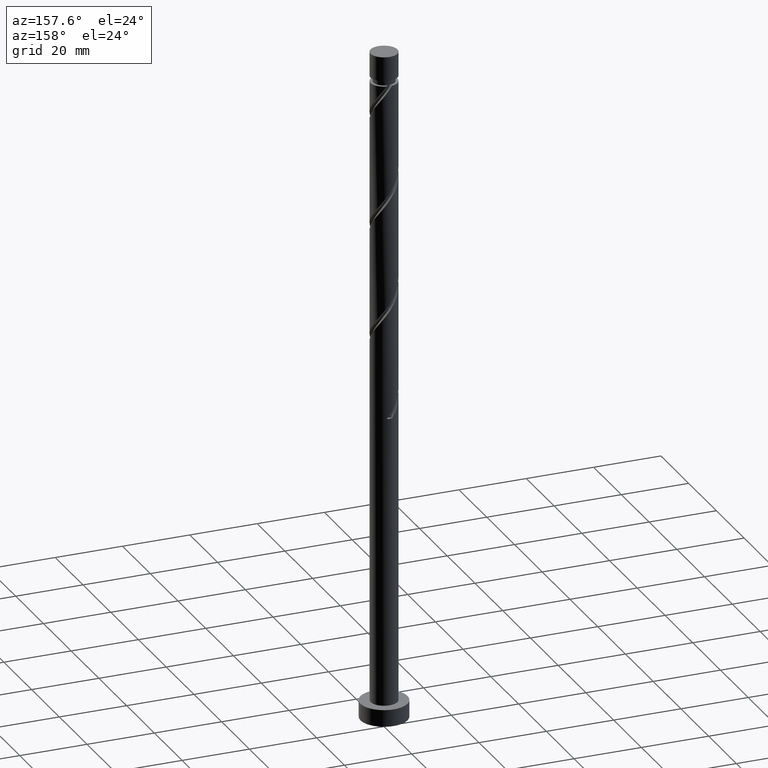
[diagram: clean part render]
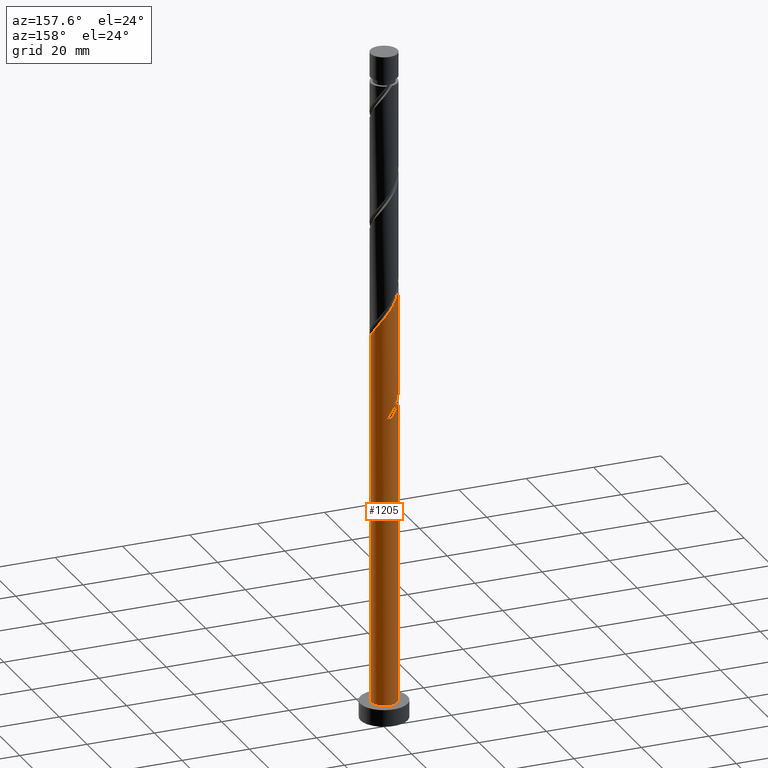
[diagram: same view with one face highlighted and labeled with its STEP entity id]
A machine part, auxiliary view. The second image highlights one B-rep face of the part: STEP entity #1205.
In plain terms, the highlighted cylindrical surface (edge-blend (fillet) strip) has radius 4 mm, axis along (-0, -0, -1).
Its self-contained STEP definition (entity closure, byte-faithful):
#2 = LINE ( 'NONE', #950, #896 ) ;
#4 = CARTESIAN_POINT ( 'NONE',  ( -1.270652482415434825, 3.792814557677648413, 93.97745116127435949 ) ) ;
#15 = CARTESIAN_POINT ( 'NONE',  ( -3.960099130553270452, 0.7713189730113410025, 130.7830067168298740 ) ) ;
#73 = DIRECTION ( 'NONE',  ( 0.000000000000000000, -1.734723475976806463E-14, -1.000000000000000000 ) ) ;
#81 = CARTESIAN_POINT ( 'NONE',  ( 0.2457034069343209393, 3.992446597741906356, 123.1441178279410593 ) ) ;
#85 = CARTESIAN_POINT ( 'NONE',  ( 0.000000000000000000, 0.000000000000000000, 5.000000000000000000 ) ) ;
#90 = CARTESIAN_POINT ( 'NONE',  ( -3.334708473430084030, 2.209008691072457786, 128.6996733834965880 ) ) ;
#99 = CARTESIAN_POINT ( 'NONE',  ( 2.648031390325383150, 3.043886962058127477, 119.6718956057187881 ) ) ;
#102 = VERTEX_POINT ( 'NONE', #1431 ) ;
#107 = EDGE_CURVE ( 'NONE', #1395, #297, #1106, .T. ) ;
#110 = CARTESIAN_POINT ( 'NONE',  ( -2.649347517584567324, 2.996824607992356615, 93.97745116127435949 ) ) ;
#123 = CARTESIAN_POINT ( 'NONE',  ( 2.996824607992358391, 2.649347517584565992, 118.9774511612743737 ) ) ;
#125 = EDGE_LOOP ( 'NONE', ( #1695, #1706, #1187, #1224, #744, #895, #416, #931 ) ) ;
#132 = CARTESIAN_POINT ( 'NONE',  ( -4.000000000000000000, 4.964656435281891898E-15, 100.5965733720399697 ) ) ;
#147 = CARTESIAN_POINT ( 'NONE',  ( -2.996824607992350842, 2.649347517584565104, 96.75522893905214517 ) ) ;
#153 = EDGE_CURVE ( 'NONE', #1625, #722, #1068, .T. ) ;
#164 = CARTESIAN_POINT ( 'NONE',  ( -3.815205935069464704, 1.312067740227889967, 98.83856227238547376 ) ) ;
#168 = AXIS2_PLACEMENT_3D ( 'NONE', #990, #856, #1528 ) ;
#214 = CARTESIAN_POINT ( 'NONE',  ( 1.270652482415439266, 3.792814557677653298, 121.7552289390521452 ) ) ;
#224 = CARTESIAN_POINT ( 'NONE',  ( -1.783437906669448347, 3.580411880364401167, 125.9218956057188450 ) ) ;
#257 = CARTESIAN_POINT ( 'NONE',  ( 3.345617825659332301, 2.254808073111004063, 118.2830067168299166 ) ) ;
#271 = DIRECTION ( 'NONE',  ( -0.000000000000000000, -0.000000000000000000, -1.000000000000000000 ) ) ;
#273 = CARTESIAN_POINT ( 'NONE',  ( -2.648031390325376044, 3.043886962058126144, 96.06078449460768809 ) ) ;
#278 = CARTESIAN_POINT ( 'NONE',  ( -3.043886962058130141, 2.648031390325380929, 94.67189560571881657 ) ) ;
#297 = VERTEX_POINT ( 'NONE', #378 ) ;
#320 = FACE_OUTER_BOUND ( 'NONE', #125, .T. ) ;
#330 = DIRECTION ( 'NONE',  ( 0.000000000000000000, 0.000000000000000000, 1.000000000000000000 ) ) ;
#350 = CARTESIAN_POINT ( 'NONE',  ( 0.7713189730113432230, 3.960099130553270452, 122.4496733834965738 ) ) ;
#361 = CARTESIAN_POINT ( 'NONE',  ( 3.815205935069471810, 1.312067740227889523, 116.8941178279410309 ) ) ;
#378 = CARTESIAN_POINT ( 'NONE',  ( -4.000000000000006217, -3.065525810942113212E-15, 131.8027733949531637 ) ) ;
#399 = CARTESIAN_POINT ( 'NONE',  ( -4.000000000000000000, 0.4020151261036884471, 100.0631470028507124 ) ) ;
#407 = CARTESIAN_POINT ( 'NONE',  ( 0.2799121591427057298, 4.024794064930534709, 91.89411782794101669 ) ) ;
#416 = ORIENTED_EDGE ( 'NONE', *, *, #153, .F. ) ;
#452 = CARTESIAN_POINT ( 'NONE',  ( -4.000000000000000000, 0.000000000000000000, 5.000000000000000000 ) ) ;
#477 = DIRECTION ( 'NONE',  ( 0.000000000000000000, 1.000000000000000000, -1.734723475976807094E-14 ) ) ;
#486 = CARTESIAN_POINT ( 'NONE',  ( 3.580411880364402499, 1.783437906669447015, 117.5885622723854880 ) ) ;
#503 = CARTESIAN_POINT ( 'NONE',  ( -3.625529984802036587, 1.769985991819534865, 129.3941178279410167 ) ) ;
#512 = CARTESIAN_POINT ( 'NONE',  ( 4.000000000000007105, 0.4020151261036751245, 115.6695330974757638 ) ) ;
#529 = CARTESIAN_POINT ( 'NONE',  ( -3.960099130553270452, 0.7713189730113410025, 97.44967338349657382 ) ) ;
#532 = CARTESIAN_POINT ( 'NONE',  ( -4.000000000000006217, -3.065525810942113212E-15, 131.8027733949531637 ) ) ;
#537 = CARTESIAN_POINT ( 'NONE',  ( 4.000000000000006217, 5.233824555267022004E-16, 115.1361067282865207 ) ) ;
#539 = CARTESIAN_POINT ( 'NONE',  ( -3.334708473430084030, 2.209008691072457786, 95.36634005016325943 ) ) ;
#541 = CARTESIAN_POINT ( 'NONE',  ( -0.7713189730113390041, 3.960099130553264235, 93.28300671682993084 ) ) ;
#555 = CARTESIAN_POINT ( 'NONE',  ( -3.992446597741906356, 0.2457034069343183302, 131.4774511612743595 ) ) ;
#602 = CARTESIAN_POINT ( 'NONE',  ( -0.7959899496852970158, 3.920000000000006146, 91.19967338349657382 ) ) ;
#609 = CYLINDRICAL_SURFACE ( 'NONE', #168, 4.000000000000000000 ) ;
#668 = CARTESIAN_POINT ( 'NONE',  ( -3.919999999999999929, 0.7959899496852975709, 99.53300671682991663 ) ) ;
#694 = CARTESIAN_POINT ( 'NONE',  ( -3.992446597741906356, 0.2457034069343183302, 98.14411782794104511 ) ) ;
#722 = VERTEX_POINT ( 'NONE', #847 ) ;
#744 = ORIENTED_EDGE ( 'NONE', *, *, #1697, .F. ) ;
#771 = CARTESIAN_POINT ( 'NONE',  ( -2.254808073111005839, 3.345617825659330968, 126.6163400501632594 ) ) ;
#815 = CARTESIAN_POINT ( 'NONE',  ( -1.769985991819531090, 3.625529984802031702, 94.67189560571881657 ) ) ;
#847 = CARTESIAN_POINT ( 'NONE',  ( 0.7959899496852983480, 3.919999999999999929, 91.19967338349657382 ) ) ;
#856 = DIRECTION ( 'NONE',  ( -0.000000000000000000, -0.000000000000000000, -1.000000000000000000 ) ) ;
#880 = EDGE_CURVE ( 'NONE', #1456, #1149, #1100, .T. ) ;
#892 = CARTESIAN_POINT ( 'NONE',  ( -0.7959899496852971268, 3.920000000000006146, 124.5330067168299450 ) ) ;
#895 = ORIENTED_EDGE ( 'NONE', *, *, #1179, .T. ) ;
#896 = VECTOR ( 'NONE', #1228, 1000.000000000000000 ) ;
#921 = CARTESIAN_POINT ( 'NONE',  ( 3.920000000000006146, 0.7959899496852973488, 116.1996733834966165 ) ) ;
#924 = LINE ( 'NONE', #1478, #1006 ) ;
#931 = ORIENTED_EDGE ( 'NONE', *, *, #1560, .F. ) ;
#936 = CARTESIAN_POINT ( 'NONE',  ( -3.625529984802036587, 1.769985991819534865, 96.06078449460768809 ) ) ;
#945 = CARTESIAN_POINT ( 'NONE',  ( 0.7959899496852983480, 3.919999999999999929, 91.19967338349657382 ) ) ;
#950 = CARTESIAN_POINT ( 'NONE',  ( -4.000000000000000000, 0.000000000000000000, 200.0000000000000000 ) ) ;
#990 = CARTESIAN_POINT ( 'NONE',  ( 0.000000000000000000, 0.000000000000000000, 200.0000000000000000 ) ) ;
#992 = CARTESIAN_POINT ( 'NONE',  ( -4.000000000000000000, 4.964656435281891898E-15, 100.5965733720399840 ) ) ;
#1006 = VECTOR ( 'NONE', #1104, 1000.000000000000000 ) ;
#1009 = CARTESIAN_POINT ( 'NONE',  ( -1.783437906669448347, 3.580411880364401167, 92.58856227238547376 ) ) ;
#1012 = EDGE_CURVE ( 'NONE', #1395, #1456, #924, .T. ) ;
#1031 = CARTESIAN_POINT ( 'NONE',  ( -0.2799121591427013445, 4.024794064930540927, 123.8385622723854453 ) ) ;
#1062 = CARTESIAN_POINT ( 'NONE',  ( -1.312067740227890411, 3.815205935069470478, 91.89411782794103090 ) ) ;
#1068 =( BOUNDED_CURVE ( )  B_SPLINE_CURVE ( 2, ( #132, #399, #668, #164, #1213, #1614, #147, #273, #1222, #815, #4, #541, #1624, #407, #945 ),
 .UNSPECIFIED., .F., .T. ) 
 B_SPLINE_CURVE_WITH_KNOTS ( ( 3, 2, 2, 2, 2, 2, 2, 3 ),
 ( 0.9295317669814463502, 0.9375000000000000000, 0.9479166666666666297, 0.9583333333333333703, 0.9687500000000000000, 0.9791666666666666297, 0.9895833333333333703, 1.000000000000000000 ),
 .UNSPECIFIED. ) 
 CURVE ( )  GEOMETRIC_REPRESENTATION_ITEM ( )  RATIONAL_B_SPLINE_CURVE ( ( 0.9062941362546401702, 0.9031415850403445855, 0.9090909090909198298, 0.9013135103398383086, 0.9090909090909198298, 0.9013135103398383086, 0.9090909090909198298, 0.9013135103398383086, 0.9090909090909198298, 0.9013135103398383086, 0.9090909090909198298, 0.9013135103398383086, 0.9090909090909198298, 0.9013135103398383086, 0.9090909090909198298 ) ) 
 REPRESENTATION_ITEM ( '' )  );
#1099 = CARTESIAN_POINT ( 'NONE',  ( -4.000000000000006217, -3.065525810942113212E-15, 98.46944006161984930 ) ) ;
#1100 = CIRCLE ( 'NONE', #1244, 4.000000000000000000 ) ;
#1104 = DIRECTION ( 'NONE',  ( -0.000000000000000000, -0.000000000000000000, -1.000000000000000000 ) ) ;
#1106 =( BOUNDED_CURVE ( )  B_SPLINE_CURVE ( 2, ( #1704, #512, #921, #361, #486, #257, #123, #99, #1204, #1555, #214, #350, #81, #1031, #892, #1443, #224, #771, #1726, #1312, #90, #503, #1173, #15, #555, #1358, #532 ),
 .UNSPECIFIED., .F., .T. ) 
 B_SPLINE_CURVE_WITH_KNOTS ( ( 3, 2, 2, 2, 2, 2, 2, 2, 2, 2, 2, 2, 2, 3 ),
 ( 0.1795317669814461559, 0.1875000000000000000, 0.1979166666666666297, 0.2083333333333333703, 0.2187500000000000000, 0.2291666666666666297, 0.2395833333333333703, 0.2500000000000000000, 0.2604166666666666297, 0.2708333333333333703, 0.2812500000000000000, 0.2916666666666666297, 0.3020833333333333703, 0.3045317669814460726 ),
 .UNSPECIFIED. ) 
 CURVE ( )  GEOMETRIC_REPRESENTATION_ITEM ( )  RATIONAL_B_SPLINE_CURVE ( ( 0.9062941362546460544, 0.9031415850403501366, 0.9090909090909254919, 0.9013135103398440817, 0.9090909090909254919, 0.9013135103398440817, 0.9090909090909254919, 0.9013135103398440817, 0.9090909090909254919, 0.9013135103398440817, 0.9090909090909254919, 0.9013135103398440817, 0.9090909090909254919, 0.9013135103398440817, 0.9090909090909254919, 0.9013135103398440817, 0.9090909090909254919, 0.9013135103398440817, 0.9090909090909254919, 0.9013135103398440817, 0.9090909090909254919, 0.9013135103398440817, 0.9090909090909254919, 0.9013135103398440817, 0.9090909090909254919, 0.9072628343904194370, 0.9062941362546460544 ) ) 
 REPRESENTATION_ITEM ( '' )  );
#1108 = CARTESIAN_POINT ( 'NONE',  ( -4.000000000000006217, 0.1229678066306997136, 98.30627637359170024 ) ) ;
#1149 = VERTEX_POINT ( 'NONE', #452 ) ;
#1173 = CARTESIAN_POINT ( 'NONE',  ( -3.792814557677653742, 1.270652482415438378, 130.0885622723855022 ) ) ;
#1179 = EDGE_CURVE ( 'NONE', #1242, #722, #1608, .T. ) ;
#1187 = ORIENTED_EDGE ( 'NONE', *, *, #880, .T. ) ;
#1193 = DIRECTION ( 'NONE',  ( 1.000000000000000000, 0.000000000000000000, 0.000000000000000000 ) ) ;
#1204 = CARTESIAN_POINT ( 'NONE',  ( 2.209008691072459118, 3.334708473430083142, 120.3663400501632879 ) ) ;
#1205 = ADVANCED_FACE ( 'NONE', ( #320 ), #609, .T. ) ;
#1213 = CARTESIAN_POINT ( 'NONE',  ( -3.580411880364394506, 1.783437906669447015, 98.14411782794101669 ) ) ;
#1222 = CARTESIAN_POINT ( 'NONE',  ( -2.209008691072454234, 3.334708473430078701, 95.36634005016324522 ) ) ;
#1224 = ORIENTED_EDGE ( 'NONE', *, *, #1536, .F. ) ;
#1228 = DIRECTION ( 'NONE',  ( -0.000000000000000000, -0.000000000000000000, -1.000000000000000000 ) ) ;
#1242 = VERTEX_POINT ( 'NONE', #1694 ) ;
#1244 = AXIS2_PLACEMENT_3D ( 'NONE', #85, #330, #1193 ) ;
#1294 = CARTESIAN_POINT ( 'NONE',  ( 0.000000000000000000, 0.000000000000000000, 91.19967338349664487 ) ) ;
#1312 = CARTESIAN_POINT ( 'NONE',  ( -3.043886962058130141, 2.648031390325380929, 128.0052289390521025 ) ) ;
#1332 = CARTESIAN_POINT ( 'NONE',  ( -2.254808073111005839, 3.345617825659330968, 93.28300671682991663 ) ) ;
#1358 = CARTESIAN_POINT ( 'NONE',  ( -4.000000000000005329, 0.1229678066307063194, 131.6396097069250004 ) ) ;
#1373 = CARTESIAN_POINT ( 'NONE',  ( -3.792814557677653742, 1.270652482415438378, 96.75522893905217359 ) ) ;
#1386 = AXIS2_PLACEMENT_3D ( 'NONE', #1294, #73, #477 ) ;
#1395 = VERTEX_POINT ( 'NONE', #537 ) ;
#1431 = CARTESIAN_POINT ( 'NONE',  ( -4.000000000000006217, -3.065525810942113212E-15, 98.46944006161984930 ) ) ;
#1435 = CARTESIAN_POINT ( 'NONE',  ( 4.000000000000000000, 4.898587196589412829E-16, 5.000000000000000000 ) ) ;
#1441 = VECTOR ( 'NONE', #271, 1000.000000000000000 ) ;
#1443 = CARTESIAN_POINT ( 'NONE',  ( -1.312067740227890411, 3.815205935069470478, 125.2274511612743453 ) ) ;
#1456 = VERTEX_POINT ( 'NONE', #1435 ) ;
#1478 = CARTESIAN_POINT ( 'NONE',  ( 4.000000000000000000, 4.898587196589412829E-16, 200.0000000000000000 ) ) ;
#1528 = DIRECTION ( 'NONE',  ( -1.000000000000000000, 0.000000000000000000, 0.000000000000000000 ) ) ;
#1536 = EDGE_CURVE ( 'NONE', #102, #1149, #1603, .T. ) ;
#1555 = CARTESIAN_POINT ( 'NONE',  ( 1.769985991819536419, 3.625529984802036143, 121.0607844946076881 ) ) ;
#1560 = EDGE_CURVE ( 'NONE', #297, #1625, #2, .T. ) ;
#1591 = CARTESIAN_POINT ( 'NONE',  ( -4.000000000000000000, 0.000000000000000000, 200.0000000000000000 ) ) ;
#1603 = LINE ( 'NONE', #1591, #1441 ) ;
#1608 = CIRCLE ( 'NONE', #1386, 4.000000000000000000 ) ;
#1614 = CARTESIAN_POINT ( 'NONE',  ( -3.345617825659326083, 2.254808073111003619, 97.44967338349658803 ) ) ;
#1624 = CARTESIAN_POINT ( 'NONE',  ( -0.2457034069343165539, 3.992446597741900582, 92.58856227238544534 ) ) ;
#1625 = VERTEX_POINT ( 'NONE', #992 ) ;
#1694 = CARTESIAN_POINT ( 'NONE',  ( -0.7959899496852970158, 3.920000000000006146, 91.19967338349657382 ) ) ;
#1695 = ORIENTED_EDGE ( 'NONE', *, *, #107, .F. ) ;
#1697 = EDGE_CURVE ( 'NONE', #1242, #102, #1732, .T. ) ;
#1704 = CARTESIAN_POINT ( 'NONE',  ( 4.000000000000006217, 5.233824555267022004E-16, 115.1361067282865207 ) ) ;
#1706 = ORIENTED_EDGE ( 'NONE', *, *, #1012, .T. ) ;
#1726 = CARTESIAN_POINT ( 'NONE',  ( -2.649347517584567324, 2.996824607992356615, 127.3107844946077307 ) ) ;
#1732 =( BOUNDED_CURVE ( )  B_SPLINE_CURVE ( 2, ( #602, #1062, #1009, #1332, #110, #278, #539, #936, #1373, #529, #694, #1108, #1099 ),
 .UNSPECIFIED., .F., .T. ) 
 B_SPLINE_CURVE_WITH_KNOTS ( ( 3, 2, 2, 2, 2, 2, 3 ),
 ( 0.000000000000000000, 0.01041666666666662966, 0.02083333333333337034, 0.03125000000000000000, 0.04166666666666662966, 0.05208333333333337034, 0.05453176698144620443 ),
 .UNSPECIFIED. ) 
 CURVE ( )  GEOMETRIC_REPRESENTATION_ITEM ( )  RATIONAL_B_SPLINE_CURVE ( ( 0.9090909090909254919, 0.9013135103398440817, 0.9090909090909254919, 0.9013135103398440817, 0.9090909090909254919, 0.9013135103398440817, 0.9090909090909254919, 0.9013135103398440817, 0.9090909090909254919, 0.9013135103398440817, 0.9090909090909254919, 0.9072628343904193260, 0.9062941362546459434 ) ) 
 REPRESENTATION_ITEM ( '' )  );